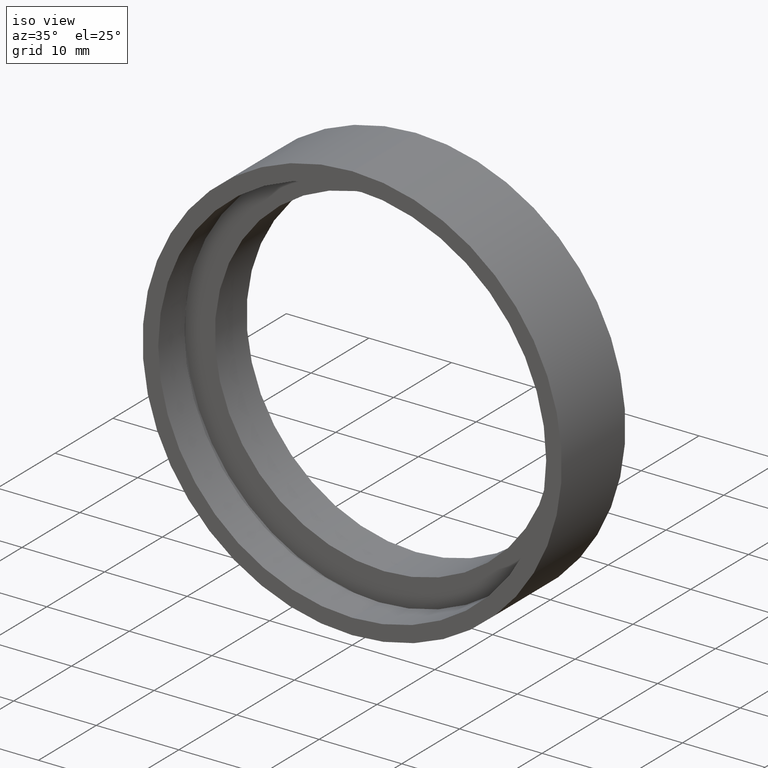
[diagram: clean part render]
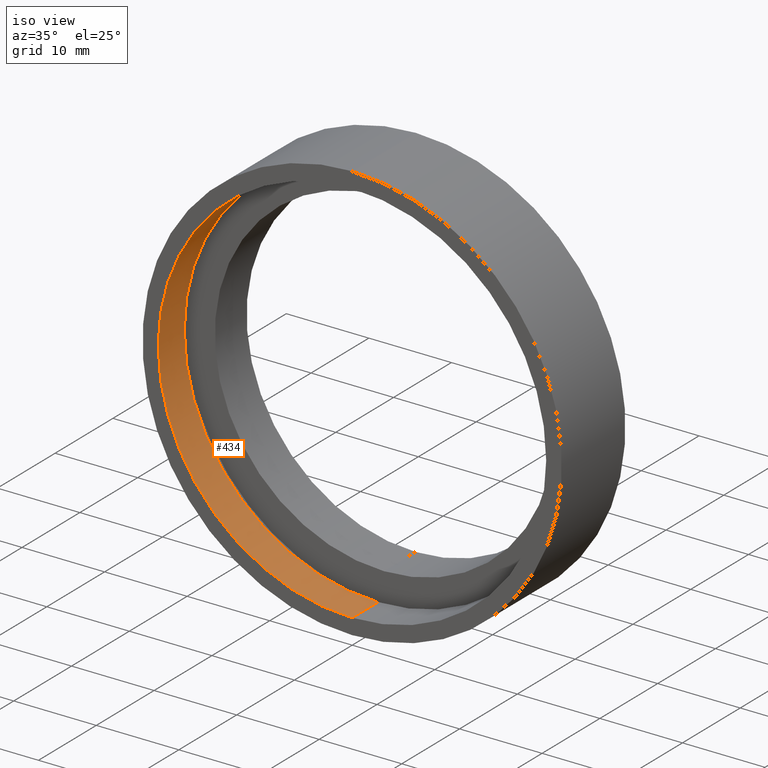
[diagram: same view with one face highlighted and labeled with its STEP entity id]
A machine part, iso view. The second image highlights one B-rep face of the part: STEP entity #434.
In plain terms, the highlighted cylindrical surface (partial cylindrical patch) has radius 23.5 mm, axis along (-0, 1, -0).
Its self-contained STEP definition (entity closure, byte-faithful):
#19 = VERTEX_POINT ( 'NONE', #367 ) ;
#20 = AXIS2_PLACEMENT_3D ( 'NONE', #88, #91, #100 ) ;
#24 = CARTESIAN_POINT ( 'NONE',  ( 0.0000000000000000000, 60.02082041425541100, 0.0000000000000000000 ) ) ;
#34 = DIRECTION ( 'NONE',  ( -0.0000000000000000000, 1.000000000000000000, -0.0000000000000000000 ) ) ;
#38 = CARTESIAN_POINT ( 'NONE',  ( 0.0000000000000000000, 0.0000000000000000000, 23.50000000000000700 ) ) ;
#40 = CARTESIAN_POINT ( 'NONE',  ( 2.877919977996281100E-015, 0.0000000000000000000, -23.50000000000000700 ) ) ;
#51 = DIRECTION ( 'NONE',  ( -0.0000000000000000000, 1.000000000000000000, -0.0000000000000000000 ) ) ;
#88 = CARTESIAN_POINT ( 'NONE',  ( 0.0000000000000000000, 0.0000000000000000000, 0.0000000000000000000 ) ) ;
#90 = CARTESIAN_POINT ( 'NONE',  ( 2.877919977996281100E-015, 60.02082041425541100, -23.50000000000000700 ) ) ;
#91 = DIRECTION ( 'NONE',  ( -0.0000000000000000000, 1.000000000000000000, -0.0000000000000000000 ) ) ;
#94 = LINE ( 'NONE', #339, #198 ) ;
#96 = DIRECTION ( 'NONE',  ( -0.0000000000000000000, 1.000000000000000000, -0.0000000000000000000 ) ) ;
#100 = DIRECTION ( 'NONE',  ( 0.0000000000000000000, 0.0000000000000000000, 1.000000000000000000 ) ) ;
#103 = EDGE_CURVE ( 'NONE', #140, #389, #94, .T. ) ;
#113 = CIRCLE ( 'NONE', #227, 23.50000000000000700 ) ;
#125 = LINE ( 'NONE', #90, #328 ) ;
#135 = DIRECTION ( 'NONE',  ( 0.0000000000000000000, 0.0000000000000000000, 1.000000000000000000 ) ) ;
#140 = VERTEX_POINT ( 'NONE', #38 ) ;
#145 = ORIENTED_EDGE ( 'NONE', *, *, #327, .T. ) ;
#179 = CYLINDRICAL_SURFACE ( 'NONE', #301, 23.50000000000000700 ) ;
#187 = EDGE_CURVE ( 'NONE', #286, #140, #394, .T. ) ;
#198 = VECTOR ( 'NONE', #34, 1000.000000000000000 ) ;
#200 = ORIENTED_EDGE ( 'NONE', *, *, #187, .F. ) ;
#226 = ORIENTED_EDGE ( 'NONE', *, *, #252, .T. ) ;
#227 = AXIS2_PLACEMENT_3D ( 'NONE', #325, #348, #404 ) ;
#252 = EDGE_CURVE ( 'NONE', #19, #389, #113, .T. ) ;
#259 = FACE_OUTER_BOUND ( 'NONE', #320, .T. ) ;
#276 = ORIENTED_EDGE ( 'NONE', *, *, #103, .F. ) ;
#286 = VERTEX_POINT ( 'NONE', #40 ) ;
#301 = AXIS2_PLACEMENT_3D ( 'NONE', #24, #96, #135 ) ;
#320 = EDGE_LOOP ( 'NONE', ( #200, #145, #226, #276 ) ) ;
#325 = CARTESIAN_POINT ( 'NONE',  ( 0.0000000000000000000, 4.499999999999997300, 0.0000000000000000000 ) ) ;
#327 = EDGE_CURVE ( 'NONE', #286, #19, #125, .T. ) ;
#328 = VECTOR ( 'NONE', #51, 1000.000000000000000 ) ;
#339 = CARTESIAN_POINT ( 'NONE',  ( 0.0000000000000000000, 60.02082041425541100, 23.50000000000000700 ) ) ;
#348 = DIRECTION ( 'NONE',  ( -0.0000000000000000000, 1.000000000000000000, -0.0000000000000000000 ) ) ;
#367 = CARTESIAN_POINT ( 'NONE',  ( 2.877919977996281100E-015, 4.499999999999997300, -23.50000000000000700 ) ) ;
#389 = VERTEX_POINT ( 'NONE', #396 ) ;
#394 = CIRCLE ( 'NONE', #20, 23.50000000000000700 ) ;
#396 = CARTESIAN_POINT ( 'NONE',  ( 0.0000000000000000000, 4.499999999999997300, 23.50000000000000700 ) ) ;
#404 = DIRECTION ( 'NONE',  ( 0.0000000000000000000, 0.0000000000000000000, 1.000000000000000000 ) ) ;
#434 = ADVANCED_FACE ( 'NONE', ( #259 ), #179, .F. ) ;